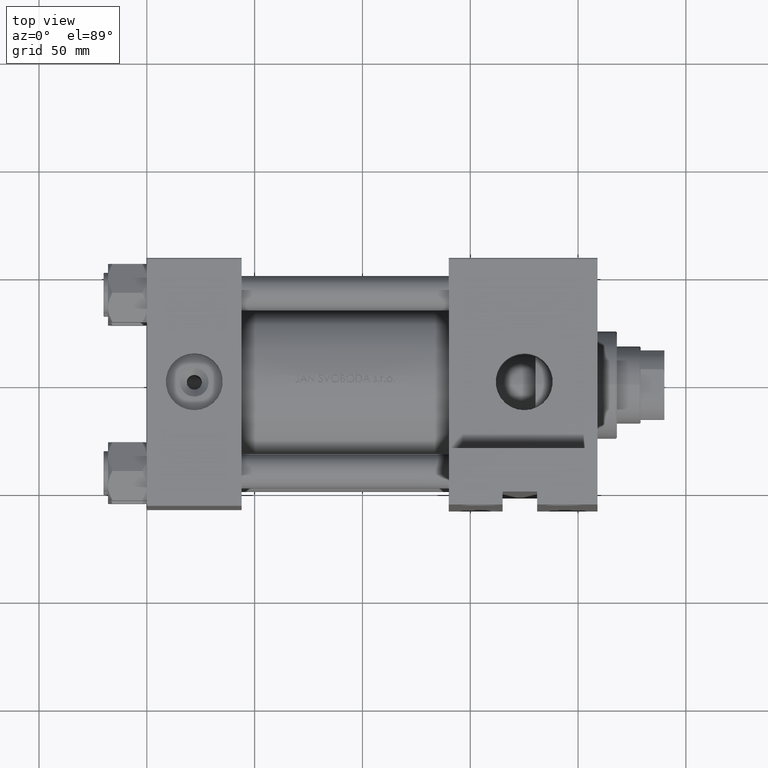
[diagram: clean part render]
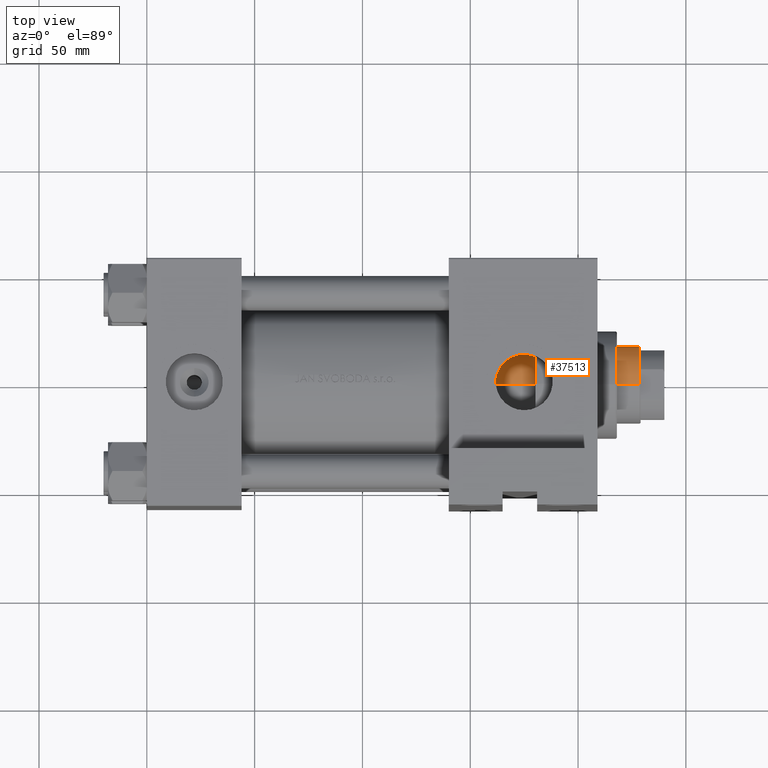
[diagram: same view with one face highlighted and labeled with its STEP entity id]
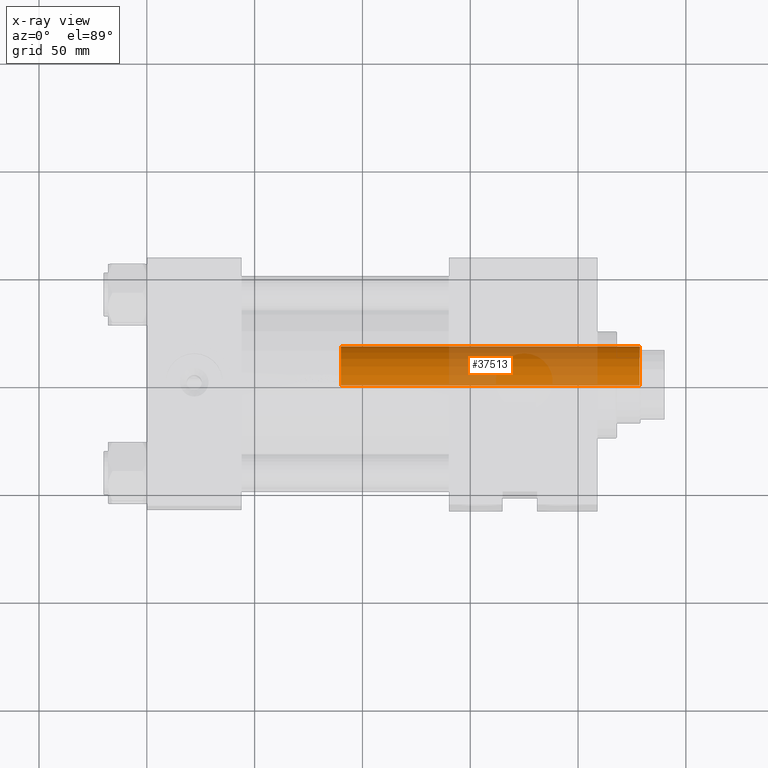
[diagram: x-ray of the same camera — body ghosted, the highlighted face saturated]
A machine part, top view. The second image highlights one B-rep face of the part: STEP entity #37513.
The next image is the same camera in x-ray: the body ghosted, the highlighted face saturated — about 40% of this face is hidden behind the body in this view.
In plain terms, the highlighted cylindrical surface (partial cylindrical patch) has radius 18 mm, axis along (-1, 0, 0).
Its self-contained STEP definition (entity closure, byte-faithful):
#1644 = DIRECTION ( 'NONE',  ( -0.000000000000000000, -0.000000000000000000, -1.000000000000000000 ) ) ;
#2094 = EDGE_CURVE ( 'NONE', #38587, #24077, #37474, .T. ) ;
#4013 = AXIS2_PLACEMENT_3D ( 'NONE', #34123, #4732, #11764 ) ;
#4732 = DIRECTION ( 'NONE',  ( 0.000000000000000000, 0.000000000000000000, 1.000000000000000000 ) ) ;
#7102 = DIRECTION ( 'NONE',  ( -0.000000000000000000, -0.000000000000000000, -1.000000000000000000 ) ) ;
#7730 = VECTOR ( 'NONE', #1644, 1000.000000000000000 ) ;
#10499 = CARTESIAN_POINT ( 'NONE',  ( -18.00000000000000000, 0.000000000000000000, 184.4999999999999716 ) ) ;
#10845 = DIRECTION ( 'NONE',  ( 0.000000000000000000, 0.000000000000000000, -1.000000000000000000 ) ) ;
#11764 = DIRECTION ( 'NONE',  ( 1.000000000000000000, 0.000000000000000000, 0.000000000000000000 ) ) ;
#13653 = CARTESIAN_POINT ( 'NONE',  ( -18.00000000000000000, 0.000000000000000000, 46.00000000000000000 ) ) ;
#15314 = CARTESIAN_POINT ( 'NONE',  ( -18.00000000000000000, 0.000000000000000000, 185.0000000000000000 ) ) ;
#16117 = VERTEX_POINT ( 'NONE', #30390 ) ;
#17585 = VERTEX_POINT ( 'NONE', #42257 ) ;
#18103 = VECTOR ( 'NONE', #7102, 1000.000000000000000 ) ;
#20855 = ORIENTED_EDGE ( 'NONE', *, *, #2094, .T. ) ;
#23039 = AXIS2_PLACEMENT_3D ( 'NONE', #37577, #10845, #33440 ) ;
#23498 = LINE ( 'NONE', #39076, #7730 ) ;
#23817 = CIRCLE ( 'NONE', #23039, 18.00000000000000000 ) ;
#24077 = VERTEX_POINT ( 'NONE', #13653 ) ;
#26546 = CYLINDRICAL_SURFACE ( 'NONE', #34894, 18.00000000000000000 ) ;
#27427 = ORIENTED_EDGE ( 'NONE', *, *, #32568, .T. ) ;
#29729 = DIRECTION ( 'NONE',  ( -0.000000000000000000, -0.000000000000000000, -1.000000000000000000 ) ) ;
#29972 = DIRECTION ( 'NONE',  ( -1.000000000000000000, 0.000000000000000000, 0.000000000000000000 ) ) ;
#30390 = CARTESIAN_POINT ( 'NONE',  ( 18.00000000000000000, 2.204364238465235428E-15, 46.00000000000000000 ) ) ;
#30799 = ORIENTED_EDGE ( 'NONE', *, *, #45584, .T. ) ;
#32568 = EDGE_CURVE ( 'NONE', #17585, #38587, #23817, .T. ) ;
#33150 = FACE_OUTER_BOUND ( 'NONE', #40016, .T. ) ;
#33440 = DIRECTION ( 'NONE',  ( 1.000000000000000000, 0.000000000000000000, 0.000000000000000000 ) ) ;
#34123 = CARTESIAN_POINT ( 'NONE',  ( 0.000000000000000000, 0.000000000000000000, 46.00000000000000000 ) ) ;
#34894 = AXIS2_PLACEMENT_3D ( 'NONE', #41437, #29729, #29972 ) ;
#36986 = EDGE_CURVE ( 'NONE', #17585, #16117, #23498, .T. ) ;
#37474 = LINE ( 'NONE', #15314, #18103 ) ;
#37513 = ADVANCED_FACE ( 'NONE', ( #33150 ), #26546, .T. ) ;
#37577 = CARTESIAN_POINT ( 'NONE',  ( 0.000000000000000000, 0.000000000000000000, 184.4999999999999716 ) ) ;
#38587 = VERTEX_POINT ( 'NONE', #10499 ) ;
#39076 = CARTESIAN_POINT ( 'NONE',  ( 18.00000000000000000, 2.204364238465235428E-15, 185.0000000000000000 ) ) ;
#40016 = EDGE_LOOP ( 'NONE', ( #43609, #27427, #20855, #30799 ) ) ;
#41437 = CARTESIAN_POINT ( 'NONE',  ( 0.000000000000000000, 0.000000000000000000, 185.0000000000000000 ) ) ;
#42257 = CARTESIAN_POINT ( 'NONE',  ( 18.00000000000000000, 2.204364238465235428E-15, 184.4999999999999716 ) ) ;
#43609 = ORIENTED_EDGE ( 'NONE', *, *, #36986, .F. ) ;
#45584 = EDGE_CURVE ( 'NONE', #24077, #16117, #46726, .T. ) ;
#46726 = CIRCLE ( 'NONE', #4013, 18.00000000000000000 ) ;